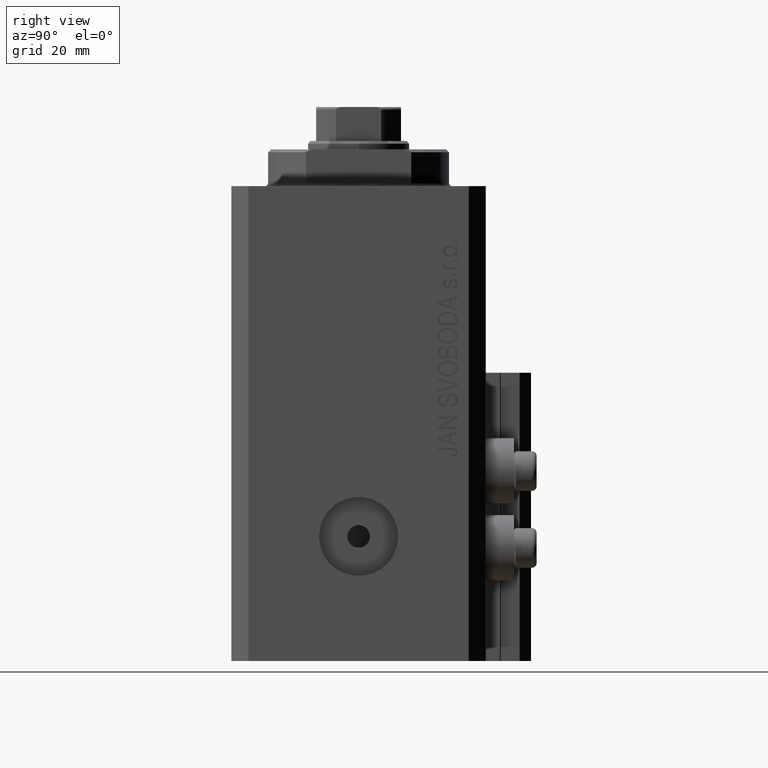
[diagram: clean part render]
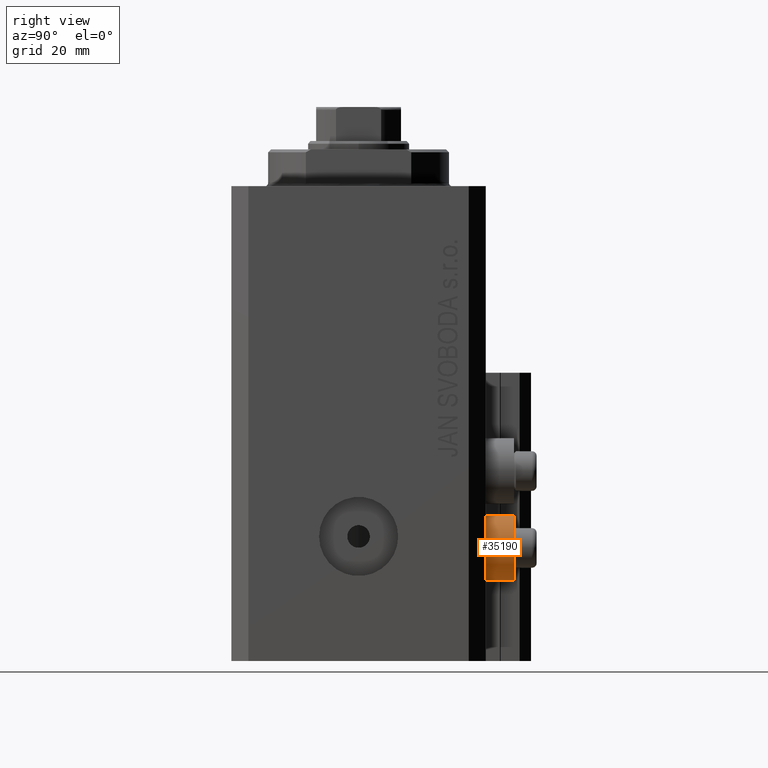
[diagram: same view with one face highlighted and labeled with its STEP entity id]
A machine part, right view. The second image highlights one B-rep face of the part: STEP entity #35190.
In plain terms, the highlighted cylindrical surface (edge-blend (fillet) strip) has radius 5.8 mm, axis along (0, 1, 0).
Its self-contained STEP definition (entity closure, byte-faithful):
#1794 = CARTESIAN_POINT ( 'NONE',  ( 18.00000000000000355, 27.49999999996051514, -58.20000000000000284 ) ) ;
#2847 = VECTOR ( 'NONE', #5606, 1000.000000000000000 ) ;
#3666 = EDGE_LOOP ( 'NONE', ( #15463, #17583, #34773, #19918 ) ) ;
#5606 = DIRECTION ( 'NONE',  ( 0.000000000000000000, 1.000000000000000000, 0.000000000000000000 ) ) ;
#6093 = EDGE_CURVE ( 'NONE', #32921, #23537, #40660, .T. ) ;
#6312 = CARTESIAN_POINT ( 'NONE',  ( 18.00000000000000355, 22.49999999999951328, -58.20000000000000284 ) ) ;
#7960 = CARTESIAN_POINT ( 'NONE',  ( 18.00000000000000355, 27.49999999996051514, -69.79999999999999716 ) ) ;
#11259 = VERTEX_POINT ( 'NONE', #6312 ) ;
#12678 = CIRCLE ( 'NONE', #30184, 5.799999999999999822 ) ;
#13231 = LINE ( 'NONE', #1794, #2847 ) ;
#14996 = DIRECTION ( 'NONE',  ( 0.000000000000000000, 0.000000000000000000, -1.000000000000000000 ) ) ;
#15463 = ORIENTED_EDGE ( 'NONE', *, *, #43967, .F. ) ;
#17583 = ORIENTED_EDGE ( 'NONE', *, *, #25782, .T. ) ;
#18336 = CARTESIAN_POINT ( 'NONE',  ( 18.00000000000000355, 22.49999999999951328, -64.00000000000000000 ) ) ;
#19631 = EDGE_CURVE ( 'NONE', #33211, #23537, #45376, .T. ) ;
#19918 = ORIENTED_EDGE ( 'NONE', *, *, #19631, .F. ) ;
#20434 = VECTOR ( 'NONE', #37065, 1000.000000000000000 ) ;
#21003 = CARTESIAN_POINT ( 'NONE',  ( 18.00000000000000355, 27.49999999996051514, -64.00000000000000000 ) ) ;
#22091 = CYLINDRICAL_SURFACE ( 'NONE', #39629, 5.799999999999999822 ) ;
#23537 = VERTEX_POINT ( 'NONE', #41954 ) ;
#25782 = EDGE_CURVE ( 'NONE', #11259, #32921, #12678, .T. ) ;
#28759 = CARTESIAN_POINT ( 'NONE',  ( 18.00000000000000355, 22.49999999999951328, -69.79999999999999716 ) ) ;
#30184 = AXIS2_PLACEMENT_3D ( 'NONE', #18336, #47226, #14996 ) ;
#31518 = DIRECTION ( 'NONE',  ( 0.000000000000000000, 0.000000000000000000, -1.000000000000000000 ) ) ;
#32921 = VERTEX_POINT ( 'NONE', #28759 ) ;
#33211 = VERTEX_POINT ( 'NONE', #43733 ) ;
#34773 = ORIENTED_EDGE ( 'NONE', *, *, #6093, .T. ) ;
#35190 = ADVANCED_FACE ( 'NONE', ( #40488 ), #22091, .T. ) ;
#35809 = DIRECTION ( 'NONE',  ( 0.000000000000000000, 1.000000000000000000, 0.000000000000000000 ) ) ;
#36659 = DIRECTION ( 'NONE',  ( 0.000000000000000000, 1.000000000000000000, 0.000000000000000000 ) ) ;
#37065 = DIRECTION ( 'NONE',  ( 0.000000000000000000, 1.000000000000000000, 0.000000000000000000 ) ) ;
#39292 = AXIS2_PLACEMENT_3D ( 'NONE', #21003, #35809, #31518 ) ;
#39629 = AXIS2_PLACEMENT_3D ( 'NONE', #40243, #36659, #40716 ) ;
#40243 = CARTESIAN_POINT ( 'NONE',  ( 18.00000000000000355, 27.49999999996051514, -64.00000000000000000 ) ) ;
#40488 = FACE_OUTER_BOUND ( 'NONE', #3666, .T. ) ;
#40660 = LINE ( 'NONE', #7960, #20434 ) ;
#40716 = DIRECTION ( 'NONE',  ( 0.000000000000000000, 0.000000000000000000, -1.000000000000000000 ) ) ;
#41954 = CARTESIAN_POINT ( 'NONE',  ( 18.00000000000000355, 27.49999999996051514, -69.79999999999999716 ) ) ;
#43733 = CARTESIAN_POINT ( 'NONE',  ( 18.00000000000000355, 27.49999999996051514, -58.20000000000000284 ) ) ;
#43967 = EDGE_CURVE ( 'NONE', #11259, #33211, #13231, .T. ) ;
#45376 = CIRCLE ( 'NONE', #39292, 5.799999999999999822 ) ;
#47226 = DIRECTION ( 'NONE',  ( 0.000000000000000000, 1.000000000000000000, 0.000000000000000000 ) ) ;